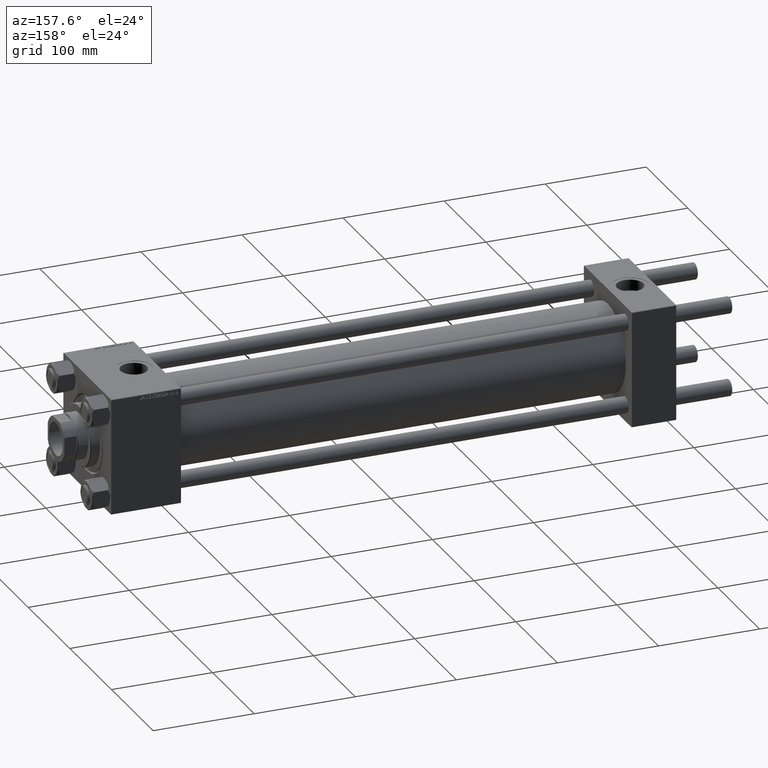
[diagram: clean part render]
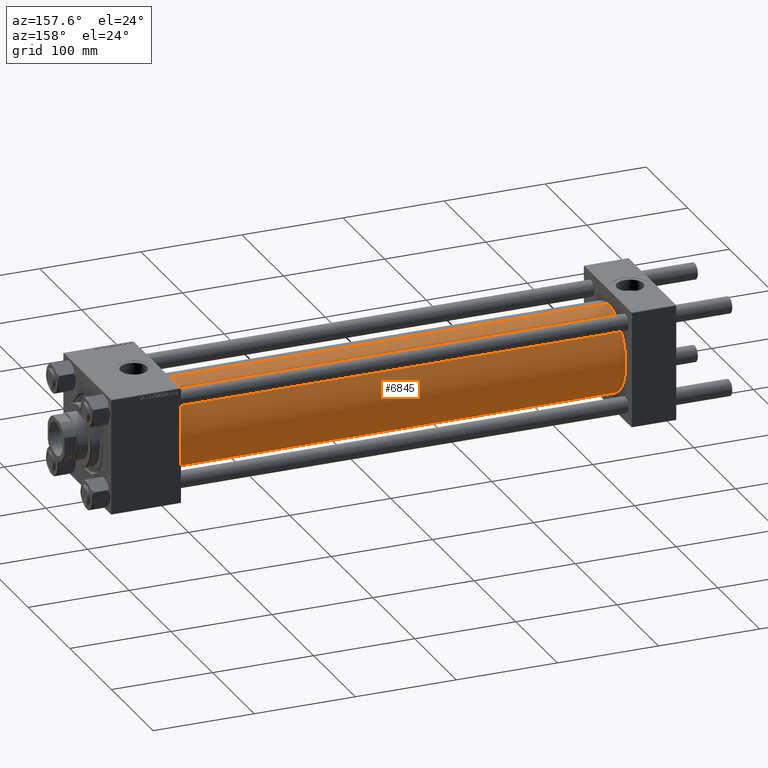
[diagram: same view with one face highlighted and labeled with its STEP entity id]
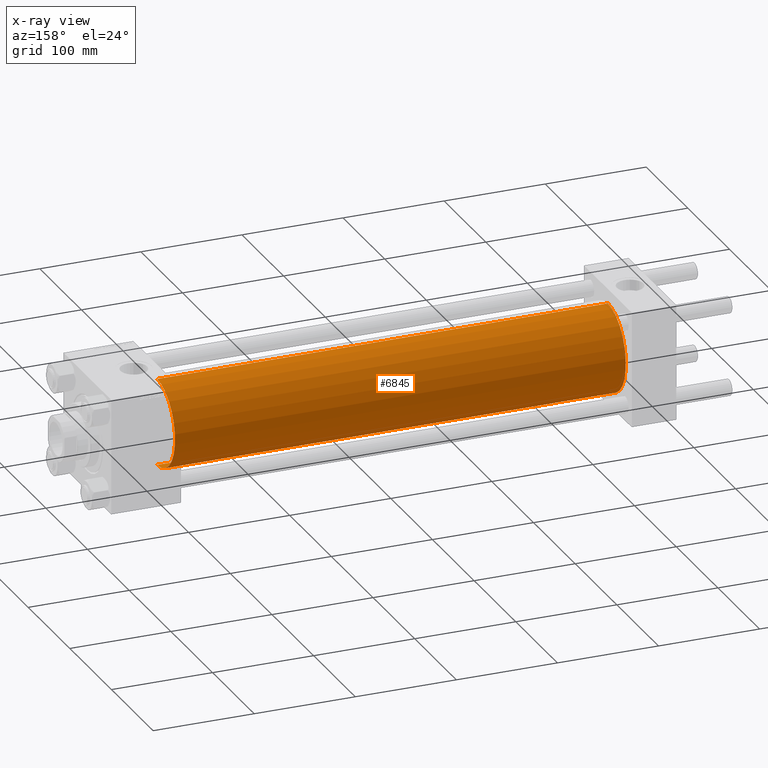
[diagram: x-ray of the same camera — body ghosted, the highlighted face saturated]
A machine part, auxiliary view. The second image highlights one B-rep face of the part: STEP entity #6845.
The next image is the same camera in x-ray: the body ghosted, the highlighted face saturated — about 0% of this face is hidden behind the body in this view.
In plain terms, the highlighted cylindrical surface (partial cylindrical patch) has radius 43 mm, axis along (-1, -0, -0).
Its self-contained STEP definition (entity closure, byte-faithful):
#1169 = VERTEX_POINT ( 'NONE', #16150 ) ;
#1502 = ORIENTED_EDGE ( 'NONE', *, *, #29986, .F. ) ;
#1658 = DIRECTION ( 'NONE',  ( 0.000000000000000000, 0.000000000000000000, -1.000000000000000000 ) ) ;
#1661 = CIRCLE ( 'NONE', #4088, 43.00000000000000000 ) ;
#4088 = AXIS2_PLACEMENT_3D ( 'NONE', #4608, #12738, #32762 ) ;
#4608 = CARTESIAN_POINT ( 'NONE',  ( 43.99999999999998579, 0.000000000000000000, 0.000000000000000000 ) ) ;
#5214 = DIRECTION ( 'NONE',  ( 1.000000000000000000, 0.000000000000000000, 0.000000000000000000 ) ) ;
#6845 = ADVANCED_FACE ( 'NONE', ( #31442 ), #11411, .T. ) ;
#7259 = DIRECTION ( 'NONE',  ( -1.000000000000000000, -0.000000000000000000, -0.000000000000000000 ) ) ;
#9104 = EDGE_LOOP ( 'NONE', ( #35215, #11302, #37674, #1502 ) ) ;
#11068 = CARTESIAN_POINT ( 'NONE',  ( 490.0000000000000000, 5.265981236333616893E-15, -43.00000000000000000 ) ) ;
#11302 = ORIENTED_EDGE ( 'NONE', *, *, #43101, .T. ) ;
#11411 = CYLINDRICAL_SURFACE ( 'NONE', #36402, 43.00000000000000000 ) ;
#12738 = DIRECTION ( 'NONE',  ( 1.000000000000000000, -0.000000000000000000, 0.000000000000000000 ) ) ;
#12912 = CIRCLE ( 'NONE', #38042, 43.00000000000000000 ) ;
#14649 = LINE ( 'NONE', #11068, #23930 ) ;
#15168 = CARTESIAN_POINT ( 'NONE',  ( 490.0000000000000000, 0.000000000000000000, 43.00000000000000000 ) ) ;
#15478 = DIRECTION ( 'NONE',  ( 0.000000000000000000, 0.000000000000000000, 1.000000000000000000 ) ) ;
#16150 = CARTESIAN_POINT ( 'NONE',  ( 43.99999999999998579, 5.265981236333616893E-15, -43.00000000000000000 ) ) ;
#19450 = VERTEX_POINT ( 'NONE', #27973 ) ;
#22736 = CARTESIAN_POINT ( 'NONE',  ( 43.99999999999998579, 0.000000000000000000, 43.00000000000000000 ) ) ;
#23930 = VECTOR ( 'NONE', #49656, 1000.000000000000000 ) ;
#24527 = CARTESIAN_POINT ( 'NONE',  ( 490.0000000000000000, 0.000000000000000000, 0.000000000000000000 ) ) ;
#26560 = CARTESIAN_POINT ( 'NONE',  ( 490.0000000000000000, 0.000000000000000000, 43.00000000000000000 ) ) ;
#27973 = CARTESIAN_POINT ( 'NONE',  ( 490.0000000000000000, 5.265981236333616893E-15, -43.00000000000000000 ) ) ;
#28048 = VERTEX_POINT ( 'NONE', #15168 ) ;
#29986 = EDGE_CURVE ( 'NONE', #28048, #33999, #46092, .T. ) ;
#31405 = EDGE_CURVE ( 'NONE', #1169, #33999, #1661, .T. ) ;
#31442 = FACE_OUTER_BOUND ( 'NONE', #9104, .T. ) ;
#32762 = DIRECTION ( 'NONE',  ( 0.000000000000000000, 0.000000000000000000, 1.000000000000000000 ) ) ;
#33999 = VERTEX_POINT ( 'NONE', #22736 ) ;
#35215 = ORIENTED_EDGE ( 'NONE', *, *, #49527, .F. ) ;
#36402 = AXIS2_PLACEMENT_3D ( 'NONE', #38545, #50227, #15478 ) ;
#37674 = ORIENTED_EDGE ( 'NONE', *, *, #31405, .T. ) ;
#38042 = AXIS2_PLACEMENT_3D ( 'NONE', #24527, #5214, #1658 ) ;
#38545 = CARTESIAN_POINT ( 'NONE',  ( 490.0000000000000000, 0.000000000000000000, 0.000000000000000000 ) ) ;
#42979 = VECTOR ( 'NONE', #7259, 1000.000000000000000 ) ;
#43101 = EDGE_CURVE ( 'NONE', #19450, #1169, #14649, .T. ) ;
#46092 = LINE ( 'NONE', #26560, #42979 ) ;
#49527 = EDGE_CURVE ( 'NONE', #19450, #28048, #12912, .T. ) ;
#49656 = DIRECTION ( 'NONE',  ( -1.000000000000000000, -0.000000000000000000, -0.000000000000000000 ) ) ;
#50227 = DIRECTION ( 'NONE',  ( -1.000000000000000000, -0.000000000000000000, -0.000000000000000000 ) ) ;